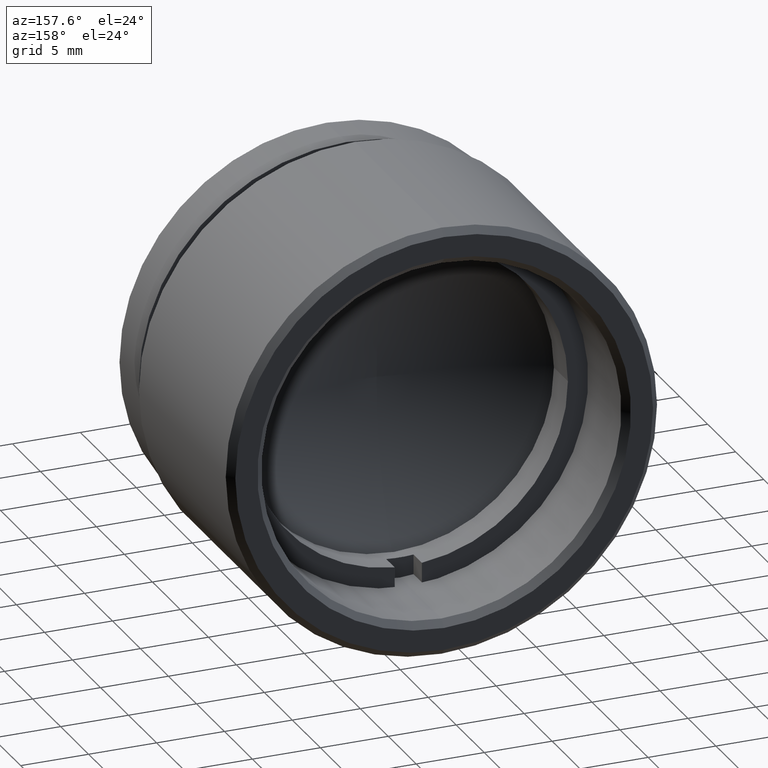
[diagram: clean part render]
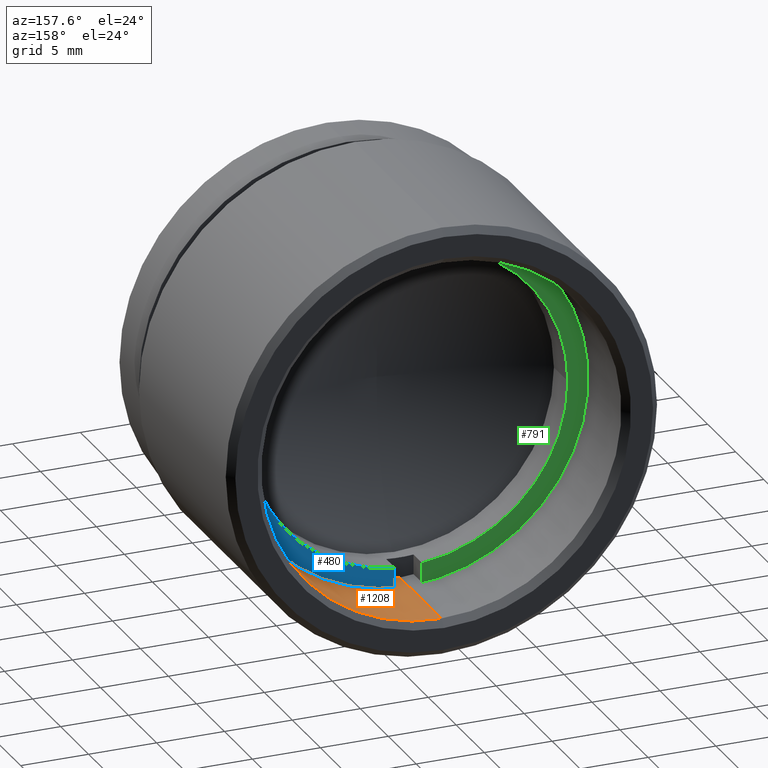
[diagram: same view with three faces highlighted in distinct colors, each labeled with its STEP entity id]
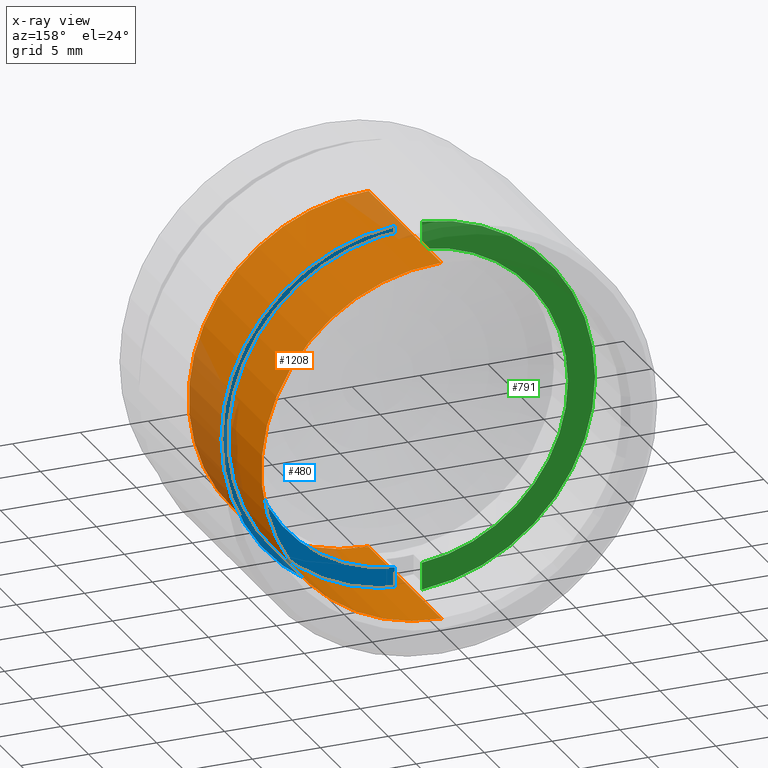
[diagram: x-ray of the same camera — body ghosted, the three highlighted faces saturated]
A machine part, auxiliary view with three faces highlighted in distinct colors.
The next image is the same camera in x-ray (body ghosted, the three faces saturated) — at least one of them is partly hidden behind the body in this view.
Their STEP definitions:

[orange] entity #1208 — the highlighted cylindrical surface (partial cylindrical patch) has radius 13.25 mm, axis along (0, -1, 0).
#33 = AXIS2_PLACEMENT_3D ( 'NONE', #450, #321, #896 ) ;
#46 = EDGE_CURVE ( 'NONE', #716, #1387, #831, .T. ) ;
#172 = AXIS2_PLACEMENT_3D ( 'NONE', #923, #349, #239 ) ;
#239 = DIRECTION ( 'NONE',  ( 0.000000000000000000, 0.000000000000000000, 1.000000000000000000 ) ) ;
#241 = FACE_OUTER_BOUND ( 'NONE', #511, .T. ) ;
#292 = DIRECTION ( 'NONE',  ( 0.000000000000000000, -1.000000000000000000, 0.000000000000000000 ) ) ;
#321 = DIRECTION ( 'NONE',  ( 0.000000000000000000, -1.000000000000000000, 0.000000000000000000 ) ) ;
#330 = ORIENTED_EDGE ( 'NONE', *, *, #489, .T. ) ;
#349 = DIRECTION ( 'NONE',  ( 0.000000000000000000, 1.000000000000000000, 0.000000000000000000 ) ) ;
#421 = CIRCLE ( 'NONE', #33, 13.25000000000000000 ) ;
#450 = CARTESIAN_POINT ( 'NONE',  ( -62.96855859389908971, 12.15316592187942035, 19.92647029529256386 ) ) ;
#489 = EDGE_CURVE ( 'NONE', #812, #646, #421, .T. ) ;
#494 = DIRECTION ( 'NONE',  ( 0.000000000000000000, 0.000000000000000000, -1.000000000000000000 ) ) ;
#511 = EDGE_LOOP ( 'NONE', ( #1424, #549, #957, #330 ) ) ;
#535 = CARTESIAN_POINT ( 'NONE',  ( -62.96855859389908971, 4.153165921879421241, 33.17647029529256031 ) ) ;
#549 = ORIENTED_EDGE ( 'NONE', *, *, #46, .T. ) ;
#638 = VECTOR ( 'NONE', #1379, 1000.000000000000000 ) ;
#646 = VERTEX_POINT ( 'NONE', #721 ) ;
#706 = DIRECTION ( 'NONE',  ( 0.000000000000000000, -1.000000000000000000, 0.000000000000000000 ) ) ;
#716 = VERTEX_POINT ( 'NONE', #1096 ) ;
#721 = CARTESIAN_POINT ( 'NONE',  ( -62.96855859389908971, 12.15316592187942035, 33.17647029529256031 ) ) ;
#801 = AXIS2_PLACEMENT_3D ( 'NONE', #840, #706, #494 ) ;
#812 = VERTEX_POINT ( 'NONE', #1092 ) ;
#831 = CIRCLE ( 'NONE', #172, 13.24999999999999822 ) ;
#840 = CARTESIAN_POINT ( 'NONE',  ( -62.96855859389908971, 4.153165921879421241, 19.92647029529256386 ) ) ;
#857 = EDGE_CURVE ( 'NONE', #716, #646, #893, .T. ) ;
#893 = LINE ( 'NONE', #535, #977 ) ;
#896 = DIRECTION ( 'NONE',  ( 0.000000000000000000, 0.000000000000000000, -1.000000000000000000 ) ) ;
#923 = CARTESIAN_POINT ( 'NONE',  ( -62.96855859389908971, 25.15316592187942035, 19.92647029529256386 ) ) ;
#957 = ORIENTED_EDGE ( 'NONE', *, *, #1030, .T. ) ;
#977 = VECTOR ( 'NONE', #292, 1000.000000000000000 ) ;
#1030 = EDGE_CURVE ( 'NONE', #1387, #812, #1496, .T. ) ;
#1092 = CARTESIAN_POINT ( 'NONE',  ( -62.96855859389908971, 12.15316592187942035, 6.676470295292562973 ) ) ;
#1096 = CARTESIAN_POINT ( 'NONE',  ( -62.96855859389908971, 25.15316592187942035, 33.17647029529256031 ) ) ;
#1168 = CARTESIAN_POINT ( 'NONE',  ( -62.96855859389908971, 25.15316592187942035, 6.676470295292562973 ) ) ;
#1208 = ADVANCED_FACE ( 'NONE', ( #241 ), #1297, .F. ) ;
#1297 = CYLINDRICAL_SURFACE ( 'NONE', #801, 13.25000000000000000 ) ;
#1379 = DIRECTION ( 'NONE',  ( 0.000000000000000000, -1.000000000000000000, 0.000000000000000000 ) ) ;
#1387 = VERTEX_POINT ( 'NONE', #1168 ) ;
#1390 = CARTESIAN_POINT ( 'NONE',  ( -62.96855859389908971, 4.153165921879421241, 6.676470295292562973 ) ) ;
#1424 = ORIENTED_EDGE ( 'NONE', *, *, #857, .F. ) ;
#1496 = LINE ( 'NONE', #1390, #638 ) ;

[blue] entity #480 — the highlighted planar face has unit normal (0, -1, 0).
#20 = AXIS2_PLACEMENT_3D ( 'NONE', #1270, #590, #136 ) ;
#38 = DIRECTION ( 'NONE',  ( -1.000000000000000000, 0.000000000000000000, 0.000000000000000000 ) ) ;
#59 = DIRECTION ( 'NONE',  ( 0.000000000000000000, 1.000000000000000000, 0.000000000000000000 ) ) ;
#72 = VECTOR ( 'NONE', #584, 1000.000000000000000 ) ;
#83 = AXIS2_PLACEMENT_3D ( 'NONE', #606, #353, #578 ) ;
#120 = VERTEX_POINT ( 'NONE', #852 ) ;
#136 = DIRECTION ( 'NONE',  ( -1.000000000000000000, 0.000000000000000000, 0.000000000000000000 ) ) ;
#165 = EDGE_CURVE ( 'NONE', #1250, #120, #518, .T. ) ;
#180 = ORIENTED_EDGE ( 'NONE', *, *, #165, .T. ) ;
#193 = CARTESIAN_POINT ( 'NONE',  ( -61.96855859389910393, 19.23996439951796944, 33.64005844719510208 ) ) ;
#220 = FACE_OUTER_BOUND ( 'NONE', #557, .T. ) ;
#334 = CARTESIAN_POINT ( 'NONE',  ( -62.96855859389910393, 19.23996439951796944, 31.67647029529263492 ) ) ;
#347 = CARTESIAN_POINT ( 'NONE',  ( -61.96855859389910393, 19.23996439951796944, 6.212882143390134004 ) ) ;
#353 = DIRECTION ( 'NONE',  ( 0.000000000000000000, 1.000000000000000000, 0.000000000000000000 ) ) ;
#364 = CIRCLE ( 'NONE', #20, 13.74999999999999822 ) ;
#376 = CARTESIAN_POINT ( 'NONE',  ( -61.96855859389910393, 19.23996439951796589, 8.219100821324536454 ) ) ;
#388 = CARTESIAN_POINT ( 'NONE',  ( -62.96855859389910393, 19.23996439951796589, 19.92647029529263492 ) ) ;
#395 = DIRECTION ( 'NONE',  ( -1.000000000000000000, 0.000000000000000000, 0.000000000000000000 ) ) ;
#406 = CARTESIAN_POINT ( 'NONE',  ( -61.96855859389911103, 19.23996439951796944, -6.926069977321962945 ) ) ;
#431 = CIRCLE ( 'NONE', #83, 11.74999999999999645 ) ;
#465 = AXIS2_PLACEMENT_3D ( 'NONE', #388, #59, #38 ) ;
#480 = ADVANCED_FACE ( 'NONE', ( #220 ), #573, .F. ) ;
#492 = DIRECTION ( 'NONE',  ( 0.000000000000000000, 1.000000000000000000, 0.000000000000000000 ) ) ;
#503 = DIRECTION ( 'NONE',  ( -1.224646799147353207E-16, 0.000000000000000000, -1.000000000000000000 ) ) ;
#518 = CIRCLE ( 'NONE', #1482, 13.74999999999999822 ) ;
#526 = LINE ( 'NONE', #406, #1049 ) ;
#557 = EDGE_LOOP ( 'NONE', ( #180, #760, #1206, #1508, #1291, #705 ) ) ;
#573 = PLANE ( 'NONE',  #999 ) ;
#578 = DIRECTION ( 'NONE',  ( -1.000000000000000000, 0.000000000000000000, 0.000000000000000000 ) ) ;
#584 = DIRECTION ( 'NONE',  ( -1.224646799147353207E-16, 0.000000000000000000, -1.000000000000000000 ) ) ;
#588 = VERTEX_POINT ( 'NONE', #662 ) ;
#590 = DIRECTION ( 'NONE',  ( 0.000000000000000000, 1.000000000000000000, 0.000000000000000000 ) ) ;
#603 = VERTEX_POINT ( 'NONE', #376 ) ;
#606 = CARTESIAN_POINT ( 'NONE',  ( -62.96855859389910393, 19.23996439951796589, 19.92647029529263492 ) ) ;
#662 = CARTESIAN_POINT ( 'NONE',  ( -61.96855859389910393, 19.23996439951796589, 31.63383976926073515 ) ) ;
#680 = VERTEX_POINT ( 'NONE', #347 ) ;
#684 = DIRECTION ( 'NONE',  ( 1.000000000000000000, 0.000000000000000000, -1.224646799147353207E-16 ) ) ;
#705 = ORIENTED_EDGE ( 'NONE', *, *, #815, .F. ) ;
#760 = ORIENTED_EDGE ( 'NONE', *, *, #1488, .T. ) ;
#761 = EDGE_CURVE ( 'NONE', #839, #603, #854, .T. ) ;
#774 = CARTESIAN_POINT ( 'NONE',  ( -51.21855859389911103, 19.23996439951796589, 19.92647029529263492 ) ) ;
#815 = EDGE_CURVE ( 'NONE', #1250, #588, #526, .T. ) ;
#839 = VERTEX_POINT ( 'NONE', #774 ) ;
#852 = CARTESIAN_POINT ( 'NONE',  ( -49.21855859389910393, 19.23996439951796589, 19.92647029529263492 ) ) ;
#854 = CIRCLE ( 'NONE', #465, 11.74999999999999645 ) ;
#913 = LINE ( 'NONE', #1383, #72 ) ;
#999 = AXIS2_PLACEMENT_3D ( 'NONE', #334, #1142, #684 ) ;
#1049 = VECTOR ( 'NONE', #503, 1000.000000000000000 ) ;
#1142 = DIRECTION ( 'NONE',  ( 0.000000000000000000, -1.000000000000000000, 0.000000000000000000 ) ) ;
#1187 = EDGE_CURVE ( 'NONE', #603, #680, #913, .T. ) ;
#1206 = ORIENTED_EDGE ( 'NONE', *, *, #1187, .F. ) ;
#1250 = VERTEX_POINT ( 'NONE', #193 ) ;
#1270 = CARTESIAN_POINT ( 'NONE',  ( -62.96855859389910393, 19.23996439951796589, 19.92647029529263492 ) ) ;
#1291 = ORIENTED_EDGE ( 'NONE', *, *, #1494, .F. ) ;
#1383 = CARTESIAN_POINT ( 'NONE',  ( -61.96855859389911103, 19.23996439951796944, -6.926069977321962945 ) ) ;
#1423 = CARTESIAN_POINT ( 'NONE',  ( -62.96855859389910393, 19.23996439951796589, 19.92647029529263492 ) ) ;
#1482 = AXIS2_PLACEMENT_3D ( 'NONE', #1423, #492, #395 ) ;
#1488 = EDGE_CURVE ( 'NONE', #120, #680, #364, .T. ) ;
#1494 = EDGE_CURVE ( 'NONE', #588, #839, #431, .T. ) ;
#1508 = ORIENTED_EDGE ( 'NONE', *, *, #761, .F. ) ;

[green] entity #791 — the highlighted planar face has unit normal (0, -1, 0).
#19 = CARTESIAN_POINT ( 'NONE',  ( -62.96855859389910393, 19.23996439951796589, 19.92647029529263492 ) ) ;
#31 = FACE_OUTER_BOUND ( 'NONE', #969, .T. ) ;
#35 = ORIENTED_EDGE ( 'NONE', *, *, #426, .F. ) ;
#42 = CARTESIAN_POINT ( 'NONE',  ( -62.96855859389910393, 19.23996439951796589, 19.92647029529263492 ) ) ;
#57 = EDGE_CURVE ( 'NONE', #1504, #823, #574, .T. ) ;
#89 = VERTEX_POINT ( 'NONE', #796 ) ;
#94 = AXIS2_PLACEMENT_3D ( 'NONE', #19, #1422, #491 ) ;
#174 = AXIS2_PLACEMENT_3D ( 'NONE', #523, #981, #1450 ) ;
#192 = AXIS2_PLACEMENT_3D ( 'NONE', #1210, #633, #627 ) ;
#218 = CIRCLE ( 'NONE', #94, 11.74999999999999645 ) ;
#234 = CARTESIAN_POINT ( 'NONE',  ( -74.71855859389910393, 19.23996439951796589, 19.92647029529263492 ) ) ;
#272 = EDGE_CURVE ( 'NONE', #612, #823, #1178, .T. ) ;
#301 = EDGE_CURVE ( 'NONE', #752, #1441, #525, .T. ) ;
#362 = CARTESIAN_POINT ( 'NONE',  ( -62.96855859389910393, 19.23996439951796589, 19.92647029529263492 ) ) ;
#374 = VECTOR ( 'NONE', #1042, 1000.000000000000000 ) ;
#426 = EDGE_CURVE ( 'NONE', #1441, #1504, #218, .T. ) ;
#491 = DIRECTION ( 'NONE',  ( -1.000000000000000000, 0.000000000000000000, 0.000000000000000000 ) ) ;
#523 = CARTESIAN_POINT ( 'NONE',  ( -62.96855859389910393, 19.23996439951796589, 19.92647029529263492 ) ) ;
#525 = CIRCLE ( 'NONE', #174, 11.74999999999999645 ) ;
#560 = ORIENTED_EDGE ( 'NONE', *, *, #1124, .F. ) ;
#567 = ORIENTED_EDGE ( 'NONE', *, *, #272, .T. ) ;
#574 = LINE ( 'NONE', #1173, #374 ) ;
#612 = VERTEX_POINT ( 'NONE', #940 ) ;
#613 = CARTESIAN_POINT ( 'NONE',  ( -63.96855859389910393, 19.23996439951796589, 8.219100821324536454 ) ) ;
#627 = DIRECTION ( 'NONE',  ( 1.000000000000000000, 0.000000000000000000, -1.224646799147353207E-16 ) ) ;
#633 = DIRECTION ( 'NONE',  ( 0.000000000000000000, -1.000000000000000000, 0.000000000000000000 ) ) ;
#639 = DIRECTION ( 'NONE',  ( 0.000000000000000000, 1.000000000000000000, 0.000000000000000000 ) ) ;
#720 = ORIENTED_EDGE ( 'NONE', *, *, #301, .F. ) ;
#752 = VERTEX_POINT ( 'NONE', #613 ) ;
#791 = ADVANCED_FACE ( 'NONE', ( #31 ), #1214, .F. ) ;
#796 = CARTESIAN_POINT ( 'NONE',  ( -63.96855859389910393, 19.23996439951796944, 6.212882143390134004 ) ) ;
#820 = LINE ( 'NONE', #953, #1264 ) ;
#823 = VERTEX_POINT ( 'NONE', #961 ) ;
#940 = CARTESIAN_POINT ( 'NONE',  ( -76.71855859389910393, 19.23996439951796589, 19.92647029529263492 ) ) ;
#953 = CARTESIAN_POINT ( 'NONE',  ( -63.96855859389910393, 19.23996439951796944, -6.926069977321962945 ) ) ;
#961 = CARTESIAN_POINT ( 'NONE',  ( -63.96855859389910393, 19.23996439951796944, 33.64005844719510208 ) ) ;
#969 = EDGE_LOOP ( 'NONE', ( #1266, #567, #1289, #35, #720, #560 ) ) ;
#980 = AXIS2_PLACEMENT_3D ( 'NONE', #42, #639, #1454 ) ;
#981 = DIRECTION ( 'NONE',  ( 0.000000000000000000, 1.000000000000000000, 0.000000000000000000 ) ) ;
#1036 = DIRECTION ( 'NONE',  ( 1.224646799147353207E-16, 0.000000000000000000, 1.000000000000000000 ) ) ;
#1042 = DIRECTION ( 'NONE',  ( 1.224646799147353207E-16, 0.000000000000000000, 1.000000000000000000 ) ) ;
#1063 = DIRECTION ( 'NONE',  ( 0.000000000000000000, 1.000000000000000000, 0.000000000000000000 ) ) ;
#1124 = EDGE_CURVE ( 'NONE', #89, #752, #820, .T. ) ;
#1131 = CIRCLE ( 'NONE', #1413, 13.74999999999999822 ) ;
#1173 = CARTESIAN_POINT ( 'NONE',  ( -63.96855859389910393, 19.23996439951796944, -6.926069977321962945 ) ) ;
#1178 = CIRCLE ( 'NONE', #980, 13.74999999999999822 ) ;
#1188 = DIRECTION ( 'NONE',  ( -1.000000000000000000, 0.000000000000000000, 0.000000000000000000 ) ) ;
#1210 = CARTESIAN_POINT ( 'NONE',  ( -62.96855859389910393, 19.23996439951796944, 31.67647029529263492 ) ) ;
#1214 = PLANE ( 'NONE',  #192 ) ;
#1264 = VECTOR ( 'NONE', #1036, 1000.000000000000000 ) ;
#1266 = ORIENTED_EDGE ( 'NONE', *, *, #1476, .T. ) ;
#1289 = ORIENTED_EDGE ( 'NONE', *, *, #57, .F. ) ;
#1413 = AXIS2_PLACEMENT_3D ( 'NONE', #362, #1063, #1188 ) ;
#1422 = DIRECTION ( 'NONE',  ( 0.000000000000000000, 1.000000000000000000, 0.000000000000000000 ) ) ;
#1429 = CARTESIAN_POINT ( 'NONE',  ( -63.96855859389910393, 19.23996439951796589, 31.63383976926073515 ) ) ;
#1441 = VERTEX_POINT ( 'NONE', #234 ) ;
#1450 = DIRECTION ( 'NONE',  ( -1.000000000000000000, 0.000000000000000000, 0.000000000000000000 ) ) ;
#1454 = DIRECTION ( 'NONE',  ( -1.000000000000000000, 0.000000000000000000, 0.000000000000000000 ) ) ;
#1476 = EDGE_CURVE ( 'NONE', #89, #612, #1131, .T. ) ;
#1504 = VERTEX_POINT ( 'NONE', #1429 ) ;